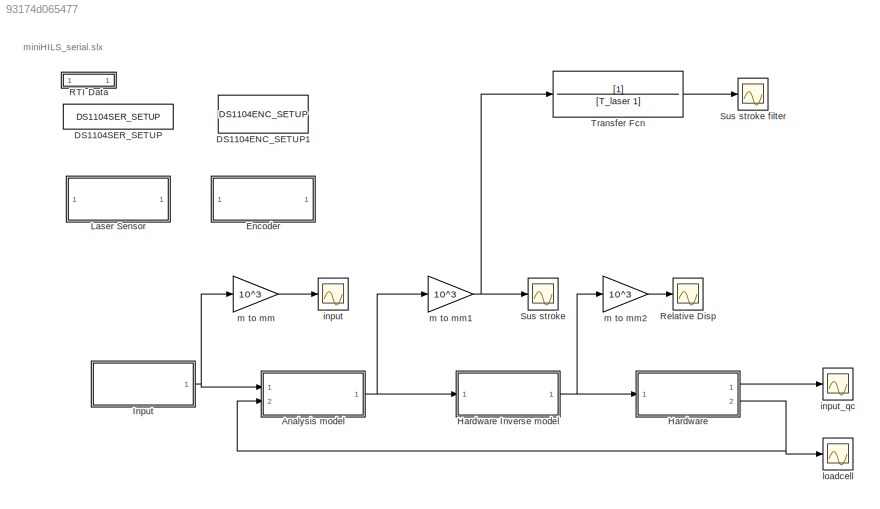
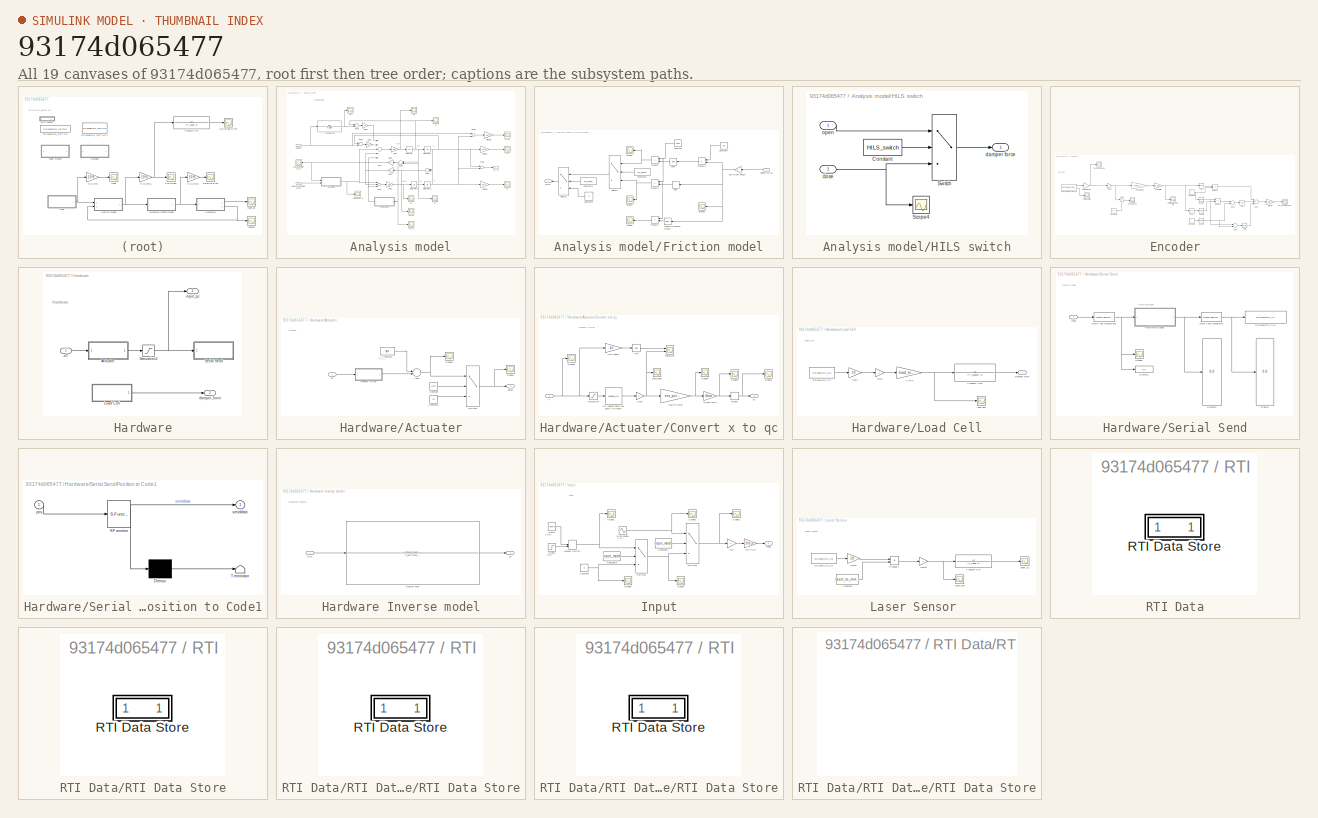
[diagram: thumbnail index - all 19 canvases of the model, root first then tree order]
MODEL slx_93174d065477
KIND model
CONFIG AbsTol = auto
CONFIG EnableMultiTasking = off
CONFIG FixedStep = 0.002
CONFIG InitFcn = start=0;\ninput_mode=1;\nHILS_switch=1;\n\n%sine wave\nHz=1;\nx=1;\nqc=26500;\n\n%sistem configuration\n%Analysis model\nm2=6.4;\nm1=1.2;\nk2=405;\nk1=2200;\nc2=15;\nc1=150;\n%Hardware model\nm2_h=6.4;\nm1_h=1.2;\nk2_h=405;\nk1_h=2200;\nc2_h=15;\nc1_h=0;\n\n%parameter\nr=0.045;\nl=0.090;\nGear=113;\nenc_pulse=500;\nlaser_to_mm=28;\nlaser_to_mm_30=6;\nload_to_N=20;\n\n%friction\nM_force=0;\nFmax=0.2;\nCf=0.001;\n\n%lowpass filter\nCutoff...<+143ch>
CONFIG MaxStep = auto
CONFIG MinStep = auto
CONFIG PostLoadFcn = , if any(exist('dsrtsu_mdlpostloadfcn', 'file') == [2, 3, 6]), try dsrtsu_mdlpostloadfcn('Execute', bdroot); catch fprintf('Error in PostLoadFcn (dsrtsu_mdlpostloadfcn) for model "%s":\n %s\n', bdroot, lasterr); end, end, \n
CONFIG RelTol = 1e-3
CONFIG SampleTimeConstraint = Unconstrained
CONFIG Solver = ode4
CONFIG SolverName = ode4
CONFIG StartTime = 0.0
CONFIG StopTime = Inf
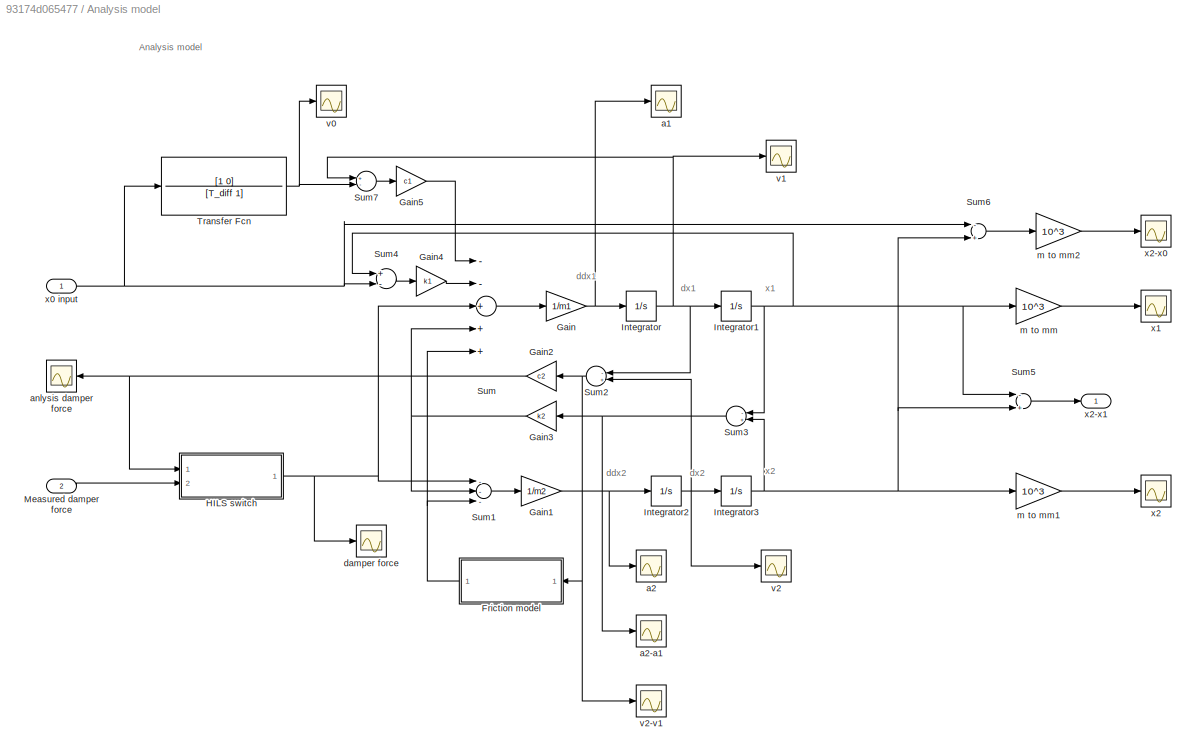
BLOCK [SubSystem] Analysis model
  Ports = [2, 1]
  RequestExecContextInheritance = off
BLOCK [SubSystem] Analysis model/Friction model
  Ports = [1, 1]
  RequestExecContextInheritance = off
BLOCK [Constant] Analysis model/Friction model/Constant
  Value = Fmax
BLOCK [Constant] Analysis model/Friction model/Constant1
  Value = M_force
BLOCK [Constant] Analysis model/Friction model/Constant2
  Value = 0
BLOCK [Constant] Analysis model/Friction model/Constant3
  Value = M_force
BLOCK [Constant] Analysis model/Friction model/Constant4
  Value = 1/Cf
BLOCK [Reference] Analysis model/Friction model/Coulomb & Viscous Friction  REF=simulink/Discontinuities/Coulomb &
Viscous Friction
  Ports = [1, 1]
  SourceBlock = simulink/Discontinuities/Coulomb &\nViscous Friction
  SourceProductBaseCode = SL
  SourceProductName = Simulink
  SourceType = Coulombic and Viscous Friction
BLOCK [Outport] Analysis model/Friction model/Force
  IconDisplay = Port number
BLOCK [Product] Analysis model/Friction model/Product
  InputSameDT = off
  OutDataTypeStr = Inherit: Inherit via internal rule
  Ports = [2, 1]
  RndMeth = Floor
  SaturateOnIntegerOverflow = off
BLOCK [Product] Analysis model/Friction model/Product1
  InputSameDT = off
  OutDataTypeStr = Inherit: Inherit via internal rule
  Ports = [2, 1]
  RndMeth = Floor
  SaturateOnIntegerOverflow = off
BLOCK [Product] Analysis model/Friction model/Product2
  InputSameDT = off
  OutDataTypeStr = Inherit: Inherit via internal rule
  Ports = [2, 1]
  RndMeth = Floor
  SaturateOnIntegerOverflow = off
BLOCK [Product] Analysis model/Friction model/Product3
  InputSameDT = off
  OutDataTypeStr = Inherit: Inherit via internal rule
  Ports = [2, 1]
  RndMeth = Floor
  SaturateOnIntegerOverflow = off
BLOCK [Scope] Analysis model/Friction model/Scope
  Floating = off
  NumInputPorts = 1
  Ports = [1]
  ScopeSpecificationString = Simulink.scopes.TimeScopeBlockCfg('CurrentConfiguration', extmgr.ConfigurationSet(extmgr.Configuration('Core','General UI',true),extmgr.Configuration('Core','Source UI',true),extmgr.Configuration('Sources','WiredSimulink',true,'DataLoggingVariableName','ScopeData5'),extmgr.Configuration('Visuals','Time Domain',true,'SerializedDisplays',{struct('MinYLimReal','-0.26264','MaxYLimReal','0.26242','YLab...<+1421ch>
BLOCK [Scope] Analysis model/Friction model/Scope1
  Floating = off
  NumInputPorts = 1
  Ports = [1]
  ScopeSpecificationString = Simulink.scopes.TimeScopeBlockCfg('CurrentConfiguration', extmgr.ConfigurationSet(extmgr.Configuration('Core','General UI',true),extmgr.Configuration('Core','Source UI',true),extmgr.Configuration('Sources','WiredSimulink',true,'DataLoggingVariableName','ScopeData6'),extmgr.Configuration('Visuals','Time Domain',true,'SerializedDisplays',{struct('MinYLimReal','-0.22386','MaxYLimReal','0.22259','YLab...<+1440ch>
BLOCK [Scope] Analysis model/Friction model/Scope2
  Floating = off
  NumInputPorts = 1
  Ports = [1]
  ScopeSpecificationString = Simulink.scopes.TimeScopeBlockCfg('CurrentConfiguration', extmgr.ConfigurationSet(extmgr.Configuration('Core','General UI',true),extmgr.Configuration('Core','Source UI',true),extmgr.Configuration('Sources','WiredSimulink',true,'DataLoggingVariableName','ScopeData7'),extmgr.Configuration('Visuals','Time Domain',true,'SerializedDisplays',{struct('MinYLimReal','-0.25','MaxYLimReal','0.25','YLabelReal...<+1349ch>
BLOCK [Scope] Analysis model/Friction model/Scope3
  Floating = off
  NumInputPorts = 1
  Ports = [1]
  ScopeSpecificationString = Simulink.scopes.TimeScopeBlockCfg('CurrentConfiguration', extmgr.ConfigurationSet(extmgr.Configuration('Core','General UI',true),extmgr.Configuration('Core','Source UI',true),extmgr.Configuration('Sources','WiredSimulink',true,'DataLoggingVariableName','ScopeData1'),extmgr.Configuration('Visuals','Time Domain',true,'SerializedDisplays',{struct('MinYLimReal','-0.03161','MaxYLimReal','0.03106','YLab...<+1451ch>
BLOCK [Signum] Analysis model/Friction model/Sign
BLOCK [Gain] Analysis model/Friction model/Sus-stroke velocity
  OutDataTypeStr = Inherit: Inherit via internal rule
  ParamDataTypeStr = Inherit: Inherit via internal rule
  SaturateOnIntegerOverflow = off
BLOCK [Switch] Analysis model/Friction model/Switch1
  Criteria = u2 > Threshold
  InputSameDT = off
  SaturateOnIntegerOverflow = off
BLOCK [Switch] Analysis model/Friction model/Switch2
  Criteria = u2 > Threshold
  InputSameDT = off
  SaturateOnIntegerOverflow = off
  Threshold = 1
BLOCK [Trigonometry] Analysis model/Friction model/Tanh
  Operator = tanh
  Ports = [1, 1]
BLOCK [Inport] Analysis model/Friction model/Velocity(v2-v1)
  IconDisplay = Port number
BLOCK [Gain] Analysis model/Gain
  Gain = 1/m1
  OutDataTypeStr = Inherit: Inherit via internal rule
  ParamDataTypeStr = Inherit: Inherit via internal rule
  SaturateOnIntegerOverflow = off
BLOCK [Gain] Analysis model/Gain1
  Gain = 1/m2
  OutDataTypeStr = Inherit: Inherit via internal rule
  ParamDataTypeStr = Inherit: Inherit via internal rule
  SaturateOnIntegerOverflow = off
BLOCK [Gain] Analysis model/Gain2
  Gain = c2
  OutDataTypeStr = Inherit: Inherit via internal rule
  ParamDataTypeStr = Inherit: Inherit via internal rule
  SaturateOnIntegerOverflow = off
BLOCK [Gain] Analysis model/Gain3
  Gain = k2
  OutDataTypeStr = Inherit: Inherit via internal rule
  ParamDataTypeStr = Inherit: Inherit via internal rule
  SaturateOnIntegerOverflow = off
BLOCK [Gain] Analysis model/Gain4
  Gain = k1
  OutDataTypeStr = Inherit: Inherit via internal rule
  ParamDataTypeStr = Inherit: Inherit via internal rule
  SaturateOnIntegerOverflow = off
BLOCK [Gain] Analysis model/Gain5
  Gain = c1
  OutDataTypeStr = Inherit: Inherit via internal rule
  ParamDataTypeStr = Inherit: Inherit via internal rule
  SaturateOnIntegerOverflow = off
BLOCK [SubSystem] Analysis model/HILS switch
  Ports = [2, 1]
  RequestExecContextInheritance = off
BLOCK [Constant] Analysis model/HILS switch/Constant
  Value = HILS_switch
BLOCK [Scope] Analysis model/HILS switch/Scope4
  Floating = off
  NumInputPorts = 1
  Ports = [1]
  ScopeSpecificationString = Simulink.scopes.TimeScopeBlockCfg('CurrentConfiguration', extmgr.ConfigurationSet(extmgr.Configuration('Core','General UI',true),extmgr.Configuration('Core','Source UI',true),extmgr.Configuration('Sources','WiredSimulink',true,'DataLoggingVariableName','ScopeData2'),extmgr.Configuration('Visuals','Time Domain',true,'SerializedDisplays',{struct('MinYLimReal','-1.00000','MaxYLimReal','1.00000','YLab...<+1396ch>
BLOCK [Switch] Analysis model/HILS switch/Switch
  Criteria = u2 > Threshold
  InputSameDT = off
  SaturateOnIntegerOverflow = off
BLOCK [Inport] Analysis model/HILS switch/close
  IconDisplay = Port number
  Port = 2
BLOCK [Outport] Analysis model/HILS switch/damper force
  IconDisplay = Port number
BLOCK [Inport] Analysis model/HILS switch/open
  IconDisplay = Port number
BLOCK [Integrator] Analysis model/Integrator
  Ports = [1, 1]
BLOCK [Integrator] Analysis model/Integrator1
  Ports = [1, 1]
BLOCK [Integrator] Analysis model/Integrator2
  Ports = [1, 1]
BLOCK [Integrator] Analysis model/Integrator3
  Ports = [1, 1]
BLOCK [Inport] Analysis model/Measured damper force
  IconDisplay = Port number
  Port = 2
BLOCK [Sum] Analysis model/Sum
  InputSameDT = off
  Inputs = --+++
  OutDataTypeStr = Inherit: Inherit via internal rule
  Ports = [5, 1]
  SaturateOnIntegerOverflow = off
BLOCK [Sum] Analysis model/Sum1
  InputSameDT = off
  Inputs = ---
  OutDataTypeStr = Inherit: Inherit via internal rule
  Ports = [3, 1]
  SaturateOnIntegerOverflow = off
BLOCK [Sum] Analysis model/Sum2
  InputSameDT = off
  Inputs = -+
  OutDataTypeStr = Inherit: Inherit via internal rule
  Ports = [2, 1]
  SaturateOnIntegerOverflow = off
BLOCK [Sum] Analysis model/Sum3
  InputSameDT = off
  Inputs = -+
  OutDataTypeStr = Inherit: Inherit via internal rule
  Ports = [2, 1]
  SaturateOnIntegerOverflow = off
BLOCK [Sum] Analysis model/Sum4
  InputSameDT = off
  Inputs = +-
  OutDataTypeStr = Inherit: Inherit via internal rule
  Ports = [2, 1]
  SaturateOnIntegerOverflow = off
BLOCK [Sum] Analysis model/Sum5
  InputSameDT = off
  Inputs = -+
  OutDataTypeStr = Inherit: Inherit via internal rule
  Ports = [2, 1]
  SaturateOnIntegerOverflow = off
BLOCK [Sum] Analysis model/Sum6
  InputSameDT = off
  Inputs = -+
  OutDataTypeStr = Inherit: Inherit via internal rule
  Ports = [2, 1]
  SaturateOnIntegerOverflow = off
BLOCK [Sum] Analysis model/Sum7
  InputSameDT = off
  Inputs = +-
  OutDataTypeStr = Inherit: Inherit via internal rule
  Ports = [2, 1]
  SaturateOnIntegerOverflow = off
BLOCK [TransferFcn] Analysis model/Transfer Fcn
  Denominator = [T_diff 1]
  Numerator = [1 0]
BLOCK [Scope] Analysis model/a1
  Floating = off
  NumInputPorts = 1
  Ports = [1]
  ScopeSpecificationString = Simulink.scopes.TimeScopeBlockCfg('CurrentConfiguration', extmgr.ConfigurationSet(extmgr.Configuration('Core','General UI',true),extmgr.Configuration('Core','Source UI',true),extmgr.Configuration('Sources','WiredSimulink',true,'DataLoggingVariableName','ScopeData2'),extmgr.Configuration('Visuals','Time Domain',true,'SerializedDisplays',{struct('MinYLimReal','-0.18629','MaxYLimReal','0.24643','YLab...<+1417ch>
BLOCK [Scope] Analysis model/a2
  Floating = off
  NumInputPorts = 1
  Ports = [1]
  ScopeSpecificationString = Simulink.scopes.TimeScopeBlockCfg('CurrentConfiguration', extmgr.ConfigurationSet(extmgr.Configuration('Core','General UI',true),extmgr.Configuration('Core','Source UI',true),extmgr.Configuration('Sources','WiredSimulink',true,'DataLoggingVariableName','ScopeData4'),extmgr.Configuration('Visuals','Time Domain',true,'SerializedDisplays',{struct('MinYLimReal','-0.17803','MaxYLimReal','0.17682','YLab...<+1389ch>
BLOCK [Scope] Analysis model/a2-a1
  Floating = off
  NumInputPorts = 1
  Ports = [1]
  ScopeSpecificationString = Simulink.scopes.TimeScopeBlockCfg('CurrentConfiguration', extmgr.ConfigurationSet(extmgr.Configuration('Core','General UI',true),extmgr.Configuration('Core','Source UI',true),extmgr.Configuration('Sources','WiredSimulink',true,'DataLoggingVariableName','ScopeData2'),extmgr.Configuration('Visuals','Time Domain',true,'SerializedDisplays',{struct('MinYLimReal','-0.00272','MaxYLimReal','0.00274','YLab...<+1417ch>
BLOCK [Scope] Analysis model/anlysis damper force
  Floating = off
  NumInputPorts = 1
  Ports = [1]
  ScopeSpecificationString = Simulink.scopes.TimeScopeBlockCfg('CurrentConfiguration', extmgr.ConfigurationSet(extmgr.Configuration('Core','General UI',true),extmgr.Configuration('Core','Source UI',true),extmgr.Configuration('Sources','WiredSimulink',true,'DataLoggingVariableName','ScopeData6'),extmgr.Configuration('Visuals','Time Domain',true,'SerializedDisplays',{struct('MinYLimReal','-0.26291','MaxYLimReal','0.26723','YLab...<+1418ch>
BLOCK [Scope] Analysis model/damper force
  Floating = off
  NumInputPorts = 1
  Ports = [1]
  ScopeSpecificationString = Simulink.scopes.TimeScopeBlockCfg('CurrentConfiguration', extmgr.ConfigurationSet(extmgr.Configuration('Core','General UI',true),extmgr.Configuration('Core','Source UI',true),extmgr.Configuration('Sources','WiredSimulink',true,'DataLoggingVariableName','ScopeData2'),extmgr.Configuration('Visuals','Time Domain',true,'SerializedDisplays',{struct('MinYLimReal','-1.00000','MaxYLimReal','1.00000','YLab...<+1390ch>
BLOCK [Gain] Analysis model/m to mm
  Gain = 10^3
  OutDataTypeStr = Inherit: Inherit via internal rule
  ParamDataTypeStr = Inherit: Inherit via internal rule
  SaturateOnIntegerOverflow = off
BLOCK [Gain] Analysis model/m to mm1
  Gain = 10^3
  OutDataTypeStr = Inherit: Inherit via internal rule
  ParamDataTypeStr = Inherit: Inherit via internal rule
  SaturateOnIntegerOverflow = off
BLOCK [Gain] Analysis model/m to mm2
  Gain = 10^3
  OutDataTypeStr = Inherit: Inherit via internal rule
  ParamDataTypeStr = Inherit: Inherit via internal rule
  SaturateOnIntegerOverflow = off
BLOCK [Scope] Analysis model/v0
  Floating = off
  NumInputPorts = 1
  Ports = [1]
  ScopeSpecificationString = Simulink.scopes.TimeScopeBlockCfg('CurrentConfiguration', extmgr.ConfigurationSet(extmgr.Configuration('Core','General UI',true),extmgr.Configuration('Core','Source UI',true),extmgr.Configuration('Sources','WiredSimulink',true,'DataLoggingVariableName','ScopeData1'),extmgr.Configuration('Visuals','Time Domain',true,'SerializedDisplays',{struct('MinYLimReal','-0.00784','MaxYLimReal','0.00784','YLab...<+1425ch>
BLOCK [Scope] Analysis model/v1
  Floating = off
  NumInputPorts = 1
  Ports = [1]
  ScopeSpecificationString = Simulink.scopes.TimeScopeBlockCfg('CurrentConfiguration', extmgr.ConfigurationSet(extmgr.Configuration('Core','General UI',true),extmgr.Configuration('Core','Source UI',true),extmgr.Configuration('Sources','WiredSimulink',true,'DataLoggingVariableName','ScopeData1'),extmgr.Configuration('Visuals','Time Domain',true,'SerializedDisplays',{struct('MinYLimReal','-0.01113','MaxYLimReal','0.01107','YLab...<+1423ch>
BLOCK [Scope] Analysis model/v2
  Floating = off
  NumInputPorts = 1
  Ports = [1]
  ScopeSpecificationString = Simulink.scopes.TimeScopeBlockCfg('CurrentConfiguration', extmgr.ConfigurationSet(extmgr.Configuration('Core','General UI',true),extmgr.Configuration('Core','Source UI',true),extmgr.Configuration('Sources','WiredSimulink',true,'DataLoggingVariableName','ScopeData3'),extmgr.Configuration('Visuals','Time Domain',true,'SerializedDisplays',{struct('MinYLimReal','-0.02751','MaxYLimReal','0.02751','YLab...<+1423ch>
BLOCK [Scope] Analysis model/v2-v1
  Floating = off
  NumInputPorts = 1
  Ports = [1]
  ScopeSpecificationString = Simulink.scopes.TimeScopeBlockCfg('CurrentConfiguration', extmgr.ConfigurationSet(extmgr.Configuration('Core','General UI',true),extmgr.Configuration('Core','Source UI',true),extmgr.Configuration('Sources','WiredSimulink',true,'DataLoggingVariableName','ScopeData3'),extmgr.Configuration('Visuals','Time Domain',true,'SerializedDisplays',{struct('MinYLimReal','-0.01753','MaxYLimReal','0.01782','YLab...<+1417ch>
BLOCK [Inport] Analysis model/x0 input
  IconDisplay = Port number
BLOCK [Scope] Analysis model/x1
  Floating = off
  NumInputPorts = 1
  Ports = [1]
  ScopeSpecificationString = Simulink.scopes.TimeScopeBlockCfg('CurrentConfiguration', extmgr.ConfigurationSet(extmgr.Configuration('Core','General UI',true),extmgr.Configuration('Core','Source UI',true),extmgr.Configuration('Sources','WiredSimulink',true,'DataLoggingVariableName','ScopeData11'),extmgr.Configuration('Visuals','Time Domain',true,'SerializedDisplays',{struct('MinYLimReal','-1.75698','MaxYLimReal','1.75412','YLa...<+1421ch>
BLOCK [Scope] Analysis model/x2
  Floating = off
  NumInputPorts = 1
  Ports = [1]
  ScopeSpecificationString = Simulink.scopes.TimeScopeBlockCfg('CurrentConfiguration', extmgr.ConfigurationSet(extmgr.Configuration('Core','General UI',true),extmgr.Configuration('Core','Source UI',true),extmgr.Configuration('Sources','WiredSimulink',true,'DataLoggingVariableName','ScopeData10'),extmgr.Configuration('Visuals','Time Domain',true,'SerializedDisplays',{struct('MinYLimReal','-4.27371','MaxYLimReal','4.29284','YLa...<+1422ch>
BLOCK [Scope] Analysis model/x2-x0
  Floating = off
  NumInputPorts = 1
  Ports = [1]
  ScopeSpecificationString = Simulink.scopes.TimeScopeBlockCfg('CurrentConfiguration', extmgr.ConfigurationSet(extmgr.Configuration('Core','General UI',true),extmgr.Configuration('Core','Source UI',true),extmgr.Configuration('Sources','WiredSimulink',true,'DataLoggingVariableName','ScopeData6'),extmgr.Configuration('Visuals','Time Domain',true,'SerializedDisplays',{struct('MinYLimReal','-1.2183','MaxYLimReal','0.96466','YLabe...<+1436ch>
BLOCK [Outport] Analysis model/x2-x1
  IconDisplay = Port number
BLOCK [Reference] DS1104ENC_SETUP1  REF=rtilib1104/DS1104 MASTER PPC/DS1104ENC_SETUP
  Ports = []
  SourceBlock = rtilib1104/DS1104 MASTER PPC/DS1104ENC_SETUP
  SourceProductName = dSPACE RTI1104
  SourceType = RTI
BLOCK [Reference] DS1104SER_SETUP  REF=rti1104serlib/DS1104SER_SETUP
  Ports = []
  SourceBlock = rti1104serlib/DS1104SER_SETUP
  SourceType = RTI
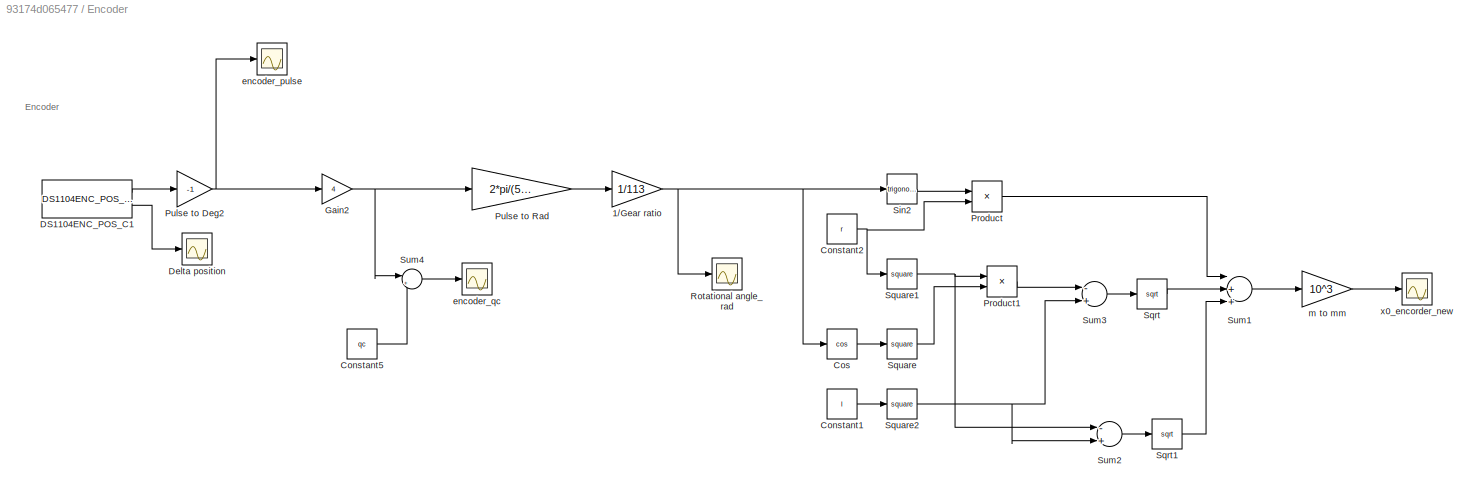
BLOCK [SubSystem] Encoder
  Ports = []
  RequestExecContextInheritance = off
BLOCK [Gain] Encoder/1//Gear ratio
  Gain = 1/113
  OutDataTypeStr = Inherit: Inherit via internal rule
  ParamDataTypeStr = Inherit: Inherit via internal rule
  SaturateOnIntegerOverflow = off
BLOCK [Constant] Encoder/Constant1
  Value = l
BLOCK [Constant] Encoder/Constant2
  Value = r
BLOCK [Constant] Encoder/Constant5
  Value = qc
BLOCK [Trigonometry] Encoder/Cos
  Operator = cos
  Ports = [1, 1]
BLOCK [Reference] Encoder/DS1104ENC_POS_C1  REF=rtilib1104/DS1104 MASTER PPC/DS1104ENC_POS_C1
  Ports = [0, 2]
  SourceBlock = rtilib1104/DS1104 MASTER PPC/DS1104ENC_POS_C1
  SourceProductName = dSPACE RTI1104
  SourceType = RTI
BLOCK [Scope] Encoder/Delta position
  Floating = off
  NumInputPorts = 1
  Ports = [1]
  ScopeSpecificationString = Simulink.scopes.TimeScopeBlockCfg('CurrentConfiguration', extmgr.ConfigurationSet(extmgr.Configuration('Core','General UI',true),extmgr.Configuration('Core','Source UI',true),extmgr.Configuration('Sources','WiredSimulink',true,'DataLoggingVariableName','ScopeData3'),extmgr.Configuration('Visuals','Time Domain',true,'SerializedDisplays',{struct('MinYLimReal','-1.00000','MaxYLimReal','1.00000','YLab...<+1377ch>
BLOCK [Gain] Encoder/Gain2
  Gain = 4
  OutDataTypeStr = Inherit: Inherit via internal rule
  ParamDataTypeStr = Inherit: Inherit via internal rule
  SaturateOnIntegerOverflow = off
BLOCK [Product] Encoder/Product
  InputSameDT = off
  OutDataTypeStr = Inherit: Inherit via internal rule
  Ports = [2, 1]
  RndMeth = Floor
  SaturateOnIntegerOverflow = off
BLOCK [Product] Encoder/Product1
  InputSameDT = off
  OutDataTypeStr = Inherit: Inherit via internal rule
  Ports = [2, 1]
  RndMeth = Floor
  SaturateOnIntegerOverflow = off
BLOCK [Gain] Encoder/Pulse to Deg2
  Gain = -1
  OutDataTypeStr = Inherit: Inherit via internal rule
  ParamDataTypeStr = Inherit: Inherit via internal rule
  SaturateOnIntegerOverflow = off
BLOCK [Gain] Encoder/Pulse to Rad
  Gain = 2*pi/(500*4)
  OutDataTypeStr = Inherit: Inherit via internal rule
  ParamDataTypeStr = Inherit: Inherit via internal rule
  SaturateOnIntegerOverflow = off
BLOCK [Scope] Encoder/Rotational angle_rad
  Floating = off
  NumInputPorts = 1
  Ports = [1]
  ScopeSpecificationString = Simulink.scopes.TimeScopeBlockCfg('CurrentConfiguration', extmgr.ConfigurationSet(extmgr.Configuration('Core','General UI',true),extmgr.Configuration('Core','Source UI',true),extmgr.Configuration('Sources','WiredSimulink',true,'DataLoggingVariableName','ScopeData5'),extmgr.Configuration('Visuals','Time Domain',true,'SerializedDisplays',{struct('MinYLimReal','-1.00000','MaxYLimReal','1.00000','YLab...<+1359ch>
BLOCK [Trigonometry] Encoder/Sin2
  Ports = [1, 1]
BLOCK [Sqrt] Encoder/Sqrt
BLOCK [Sqrt] Encoder/Sqrt1
BLOCK [Math] Encoder/Square
  Operator = square
  Ports = [1, 1]
BLOCK [Math] Encoder/Square1
  Operator = square
  Ports = [1, 1]
BLOCK [Math] Encoder/Square2
  Operator = square
  Ports = [1, 1]
BLOCK [Sum] Encoder/Sum1
  InputSameDT = off
  Inputs = |++-
  OutDataTypeStr = Inherit: Inherit via internal rule
  Ports = [3, 1]
  SaturateOnIntegerOverflow = off
BLOCK [Sum] Encoder/Sum2
  InputSameDT = off
  Inputs = -+
  OutDataTypeStr = Inherit: Inherit via internal rule
  Ports = [2, 1]
  SaturateOnIntegerOverflow = off
BLOCK [Sum] Encoder/Sum3
  InputSameDT = off
  Inputs = -+
  OutDataTypeStr = Inherit: Inherit via internal rule
  Ports = [2, 1]
  SaturateOnIntegerOverflow = off
BLOCK [Sum] Encoder/Sum4
  IconShape = round
  InputSameDT = off
  Inputs = |++
  OutDataTypeStr = Inherit: Inherit via internal rule
  Ports = [2, 1]
  SaturateOnIntegerOverflow = off
BLOCK [Scope] Encoder/encoder_pulse
  Floating = off
  NumInputPorts = 1
  Ports = [1]
  ScopeSpecificationString = Simulink.scopes.TimeScopeBlockCfg('CurrentConfiguration', extmgr.ConfigurationSet(extmgr.Configuration('Core','General UI',true),extmgr.Configuration('Core','Source UI',true),extmgr.Configuration('Sources','WiredSimulink',true,'DataLoggingVariableName','ScopeData4'),extmgr.Configuration('Visuals','Time Domain',true,'SerializedDisplays',{struct('MinYLimReal','-0.39775','MaxYLimReal','3.57978','YLab...<+1419ch>
BLOCK [Scope] Encoder/encoder_qc
  Floating = off
  NumInputPorts = 1
  Ports = [1]
  ScopeSpecificationString = Simulink.scopes.TimeScopeBlockCfg('CurrentConfiguration', extmgr.ConfigurationSet(extmgr.Configuration('Core','General UI',true),extmgr.Configuration('Core','Source UI',true),extmgr.Configuration('Sources','WiredSimulink',true,'DataLoggingVariableName','ScopeData1'),extmgr.Configuration('Visuals','Time Domain',true,'SerializedDisplays',{struct('MinYLimReal','-2500.11228','MaxYLimReal','22501.01049...<+1445ch>
BLOCK [Gain] Encoder/m to mm
  Gain = 10^3
  OutDataTypeStr = Inherit: Inherit via internal rule
  ParamDataTypeStr = Inherit: Inherit via internal rule
  SaturateOnIntegerOverflow = off
BLOCK [Scope] Encoder/x0_encorder_new
  Floating = off
  NumInputPorts = 1
  Ports = [1]
  ScopeSpecificationString = Simulink.scopes.TimeScopeBlockCfg('CurrentConfiguration', extmgr.ConfigurationSet(extmgr.Configuration('Core','General UI',true),extmgr.Configuration('Core','Source UI',true),extmgr.Configuration('Sources','WiredSimulink',true,'DataLoggingVariableName','ScopeData2'),extmgr.Configuration('Visuals','Time Domain',true,'SerializedDisplays',{struct('MinYLimReal','9.0312','MaxYLimReal','17.97121','YLabe...<+1391ch>
BLOCK [SubSystem] Hardware
  Ports = [1, 2]
  RequestExecContextInheritance = off
BLOCK [SubSystem] Hardware Inverse model
  Ports = [1, 1]
  RequestExecContextInheritance = off
BLOCK [TransferFcn] Hardware Inverse model/Transfer Fcn3
  Denominator = [T_diff^3*k1_h 3*T_diff^2*k1_h 3*T_diff*k1_h k1_h]
  Numerator = [-m1_h -c2_h -(k1_h+k2_h)]
BLOCK [Outport] Hardware Inverse model/x0'
  IconDisplay = Port number
BLOCK [Inport] Hardware Inverse model/x2-x1
  IconDisplay = Port number
BLOCK [SubSystem] Hardware/Actuater
  Ports = [1, 1]
  RequestExecContextInheritance = off
BLOCK [Sum] Hardware/Actuater/Add2
  InputSameDT = off
  OutDataTypeStr = Inherit: Inherit via internal rule
  Ports = [2, 1]
  SaturateOnIntegerOverflow = off
BLOCK [Constant] Hardware/Actuater/Constant
  Value = start
BLOCK [Constant] Hardware/Actuater/Constant3
  Value = qc
BLOCK [Constant] Hardware/Actuater/Constant4
  OutDataTypeStr = int16
  SampleTime = 1
  Value = qc
BLOCK [SubSystem] Hardware/Actuater/Convert x to qc
  Ports = [1, 1]
  RequestExecContextInheritance = off
BLOCK [Gain] Hardware/Actuater/Convert x to qc/1//Gear ratio
  Gain = Gear
  OutDataTypeStr = Inherit: Inherit via internal rule
  ParamDataTypeStr = Inherit: Inherit via internal rule
  SaturateOnIntegerOverflow = off
BLOCK [Trigonometry] Hardware/Actuater/Convert x to qc/Asin
  Operator = asin
  Ports = [1, 1]
BLOCK [Gain] Hardware/Actuater/Convert x to qc/Gain
  OutDataTypeStr = Inherit: Inherit via internal rule
  ParamDataTypeStr = Inherit: Inherit via internal rule
  SaturateOnIntegerOverflow = off
BLOCK [Gain] Hardware/Actuater/Convert x to qc/Link length
  Gain = 1/r
  OutDataTypeStr = Inherit: Inherit via internal rule
  ParamDataTypeStr = Inherit: Inherit via internal rule
  SaturateOnIntegerOverflow = off
BLOCK [Gain] Hardware/Actuater/Convert x to qc/Rad to Pulse
  Gain = enc_pulse*4/(2*pi)
  OutDataTypeStr = Inherit: Inherit via internal rule
  ParamDataTypeStr = Inherit: Inherit via internal rule
  SaturateOnIntegerOverflow = off
BLOCK [Rounding] Hardware/Actuater/Convert x to qc/Round
  Operator = round
BLOCK [Saturate] Hardware/Actuater/Convert x to qc/Saturation
  InputPortMap = u0
  LowerLimit = -0.25
  Ports = [1, 1]
  UpperLimit = 0.38
BLOCK [Scope] Hardware/Actuater/Convert x to qc/Scope1
  Floating = off
  NumInputPorts = 1
  Ports = [1]
  ScopeSpecificationString = Simulink.scopes.TimeScopeBlockCfg('CurrentConfiguration', extmgr.ConfigurationSet(extmgr.Configuration('Core','General UI',true),extmgr.Configuration('Core','Source UI',true),extmgr.Configuration('Sources','WiredSimulink',true,'DataLoggingVariableName','ScopeData2'),extmgr.Configuration('Visuals','Time Domain',true,'SerializedDisplays',{struct('MinYLimReal','-1150.37875','MaxYLimReal','1122.43673'...<+1418ch>
BLOCK [Scope] Hardware/Actuater/Convert x to qc/Scope2
  Floating = off
  NumInputPorts = 1
  Ports = [1]
  ScopeSpecificationString = Simulink.scopes.TimeScopeBlockCfg('CurrentConfiguration', extmgr.ConfigurationSet(extmgr.Configuration('Core','General UI',true),extmgr.Configuration('Core','Source UI',true),extmgr.Configuration('Sources','WiredSimulink',true,'DataLoggingVariableName','ScopeData3'),extmgr.Configuration('Visuals','Time Domain',true,'SerializedDisplays',{struct('MinYLimReal','-1150.25','MaxYLimReal','1122.25','YLab...<+1393ch>
BLOCK [Scope] Hardware/Actuater/Convert x to qc/Scope3
  Floating = off
  NumInputPorts = 1
  Ports = [1]
  ScopeSpecificationString = Simulink.scopes.TimeScopeBlockCfg('CurrentConfiguration', extmgr.ConfigurationSet(extmgr.Configuration('Core','General UI',true),extmgr.Configuration('Core','Source UI',true),extmgr.Configuration('Sources','WiredSimulink',true,'DataLoggingVariableName','ScopeData4'),extmgr.Configuration('Visuals','Time Domain',true,'SerializedDisplays',{struct('MinYLimReal','-0.0143','MaxYLimReal','0.01412','YLabe...<+1381ch>
BLOCK [Scope] Hardware/Actuater/Convert x to qc/Scope6
  Floating = off
  NumInputPorts = 1
  Ports = [1]
  ScopeSpecificationString = Simulink.scopes.TimeScopeBlockCfg('CurrentConfiguration', extmgr.ConfigurationSet(extmgr.Configuration('Core','General UI',true),extmgr.Configuration('Core','Source UI',true),extmgr.Configuration('Sources','WiredSimulink',true,'DataLoggingVariableName','ScopeData7'),extmgr.Configuration('Visuals','Time Domain',true,'SerializedDisplays',{struct('MinYLimReal','-10.18034','MaxYLimReal','9.93307','YLa...<+1430ch>
BLOCK [Lookup_n-D] Hardware/Actuater/Convert x to qc/n-D Lookup Table (90 data) x to theta
  BreakpointsForDimension1 = [-0.0255748\n-0.025224748\n-0.024865444\n-0.024496806\n-0.024118754\n-0.023731207\n-0.023334088\n-0.022927321\n-0.022510829\n-0.022084541\n-0.021648387\n-0.021202299\n-0.020746214\n-0.02028007\n-0.01980381\n-0.019317383\n-0.018820738\n-0.018313834\n-0.01779663\n-0.017269095\n-0.016731201\n-0.016182927\n-0.015624258\n-0.015055189\n-0.014475717\n-0.013885852\n-0.013285608\n-0.012675011\n-0.012054093\n-0.011422895\n-0.010781471\n-...<+720ch>
  BreakpointsForDimension3 = [5, 7]
  ExtrapMethod = Cubic spline
  InternalRulePriority = Speed
  InterpMethod = Cubic spline
  NumberOfTableDimensions = 1
  Ports = [1, 1]
  RndMeth = Simplest
  Table = [-0.785398163\n-0.767944871\n-0.750491578\n-0.733038286\n-0.715584993\n-0.698131701\n-0.680678408\n-0.663225116\n-0.645771823\n-0.628318531\n-0.610865238\n-0.593411946\n-0.575958653\n-0.558505361\n-0.541052068\n-0.523598776\n-0.506145483\n-0.488692191\n-0.471238898\n-0.453785606\n-0.436332313\n-0.41887902\n-0.401425728\n-0.383972435\n-0.366519143\n-0.34906585\n-0.331612558\n-0.314159265\n-0.296705973\n-0.27925268\n-0.261799388...<+717ch>
BLOCK [Outport] Hardware/Actuater/Convert x to qc/qc
  IconDisplay = Port number
BLOCK [Scope] Hardware/Actuater/Convert x to qc/theta_new
  Floating = off
  NumInputPorts = 1
  Ports = [1]
  ScopeSpecificationString = Simulink.scopes.TimeScopeBlockCfg('CurrentConfiguration', extmgr.ConfigurationSet(extmgr.Configuration('Core','General UI',true),extmgr.Configuration('Core','Source UI',true),extmgr.Configuration('Sources','WiredSimulink',true,'DataLoggingVariableName','ScopeData5'),extmgr.Configuration('Visuals','Time Domain',true,'SerializedDisplays',{struct('MinYLimReal','-0.03198','MaxYLimReal','0.03121','YLab...<+1417ch>
BLOCK [Scope] Hardware/Actuater/Convert x to qc/theta_old
  Floating = off
  NumInputPorts = 2
  Ports = [2]
  ScopeSpecificationString = Simulink.scopes.TimeScopeBlockCfg('CurrentConfiguration', extmgr.ConfigurationSet(extmgr.Configuration('Core','General UI',true),extmgr.Configuration('Core','Source UI',true),extmgr.Configuration('Sources','WiredSimulink',true,'DataLoggingVariableName','ScopeData1'),extmgr.Configuration('Visuals','Time Domain',true,'SerializedDisplays',{struct('MinYLimReal','-0.28081','MaxYLimReal','0.26601','YLab...<+1437ch>
BLOCK [Inport] Hardware/Actuater/Convert x to qc/x
  IconDisplay = Port number
BLOCK [Scope] Hardware/Actuater/Scope1
  Floating = off
  NumInputPorts = 1
  Ports = [1]
  ScopeSpecificationString = Simulink.scopes.TimeScopeBlockCfg('CurrentConfiguration', extmgr.ConfigurationSet(extmgr.Configuration('Core','General UI',true),extmgr.Configuration('Core','Source UI',true),extmgr.Configuration('Sources','WiredSimulink',true,'DataLoggingVariableName','ScopeData4'),extmgr.Configuration('Visuals','Time Domain',true,'SerializedDisplays',{struct('MinYLimReal','17000.00000','MaxYLimReal','37000.00000...<+1440ch>
BLOCK [Scope] Hardware/Actuater/Scope4
  Floating = off
  NumInputPorts = 1
  Ports = [1]
  ScopeSpecificationString = Simulink.scopes.TimeScopeBlockCfg('CurrentConfiguration', extmgr.ConfigurationSet(extmgr.Configuration('Core','General UI',true),extmgr.Configuration('Core','Source UI',true),extmgr.Configuration('Sources','WiredSimulink',true,'DataLoggingVariableName','ScopeData3'),extmgr.Configuration('Visuals','Time Domain',true,'SerializedDisplays',{struct('MinYLimReal','25849.75','MaxYLimReal','28122.25','YLa...<+1413ch>
BLOCK [Switch] Hardware/Actuater/Switch1
  Criteria = u2 > Threshold
  InputSameDT = off
  SaturateOnIntegerOverflow = off
BLOCK [Inport] Hardware/Actuater/x0'
  IconDisplay = Port number
BLOCK [Outport] Hardware/Actuater/x0'(qc)
  IconDisplay = Port number
BLOCK [SubSystem] Hardware/Load Cell
  Ports = [0, 1]
  RequestExecContextInheritance = off
BLOCK [Reference] Hardware/Load Cell/DS1104ADC_C7  REF=rtilib1104/DS1104 MASTER PPC/DS1104ADC_C5
  Ports = [0, 1]
  SourceBlock = rtilib1104/DS1104 MASTER PPC/DS1104ADC_C5
  SourceProductName = dSPACE RTI1104
  SourceType = RTI
BLOCK [Outport] Hardware/Load Cell/Damper force
  IconDisplay = Port number
BLOCK [Gain] Hardware/Load Cell/Gain
  Gain = -1
  OutDataTypeStr = Inherit: Inherit via internal rule
  ParamDataTypeStr = Inherit: Inherit via internal rule
  SaturateOnIntegerOverflow = off
BLOCK [Gain] Hardware/Load Cell/Gain 
  Gain = 10
  OutDataTypeStr = Inherit: Inherit via internal rule
  ParamDataTypeStr = Inherit: Inherit via internal rule
  SaturateOnIntegerOverflow = off
BLOCK [TransferFcn] Hardware/Load Cell/Transfer Fcn1
  Denominator = [T_loadcell 1]
BLOCK [Gain] Hardware/Load Cell/V to N
  Gain = load_to_N/10
  OutDataTypeStr = Inherit: Inherit via internal rule
  ParamDataTypeStr = Inherit: Inherit via internal rule
  SaturateOnIntegerOverflow = off
BLOCK [Scope] Hardware/Load Cell/load raw
  Floating = off
  NumInputPorts = 1
  Ports = [1]
  ScopeSpecificationString = Simulink.scopes.TimeScopeBlockCfg('CurrentConfiguration', extmgr.ConfigurationSet(extmgr.Configuration('Core','General UI',true),extmgr.Configuration('Core','Source UI',true),extmgr.Configuration('Sources','WiredSimulink',true,'DataLoggingVariableName','ScopeData1'),extmgr.Configuration('Visuals','Time Domain',true),extmgr.Configuration('Tools','Plot Navigation',true),extmgr.Configuration('Tools',...<+40ch>
BLOCK [Saturate] Hardware/Saturation2
  InputPortMap = u0
  LowerLimit = 0
  Ports = [1, 1]
  UpperLimit = 47000
BLOCK [SubSystem] Hardware/Serial Send
  Ports = [1]
  RequestExecContextInheritance = off
BLOCK [Reference] Hardware/Serial Send/DS1104SER_TX3  REF=rti1104serlib/DS1104SER_TX
  Ports = [1]
  SourceBlock = rti1104serlib/DS1104SER_TX
  SourceType = RTI
BLOCK [DataTypeConversion] Hardware/Serial Send/Data Type Conversion
  OutDataTypeStr = uint8
  RndMeth = Floor
  SaturateOnIntegerOverflow = off
BLOCK [DataTypeConversion] Hardware/Serial Send/Data Type Conversion1
  OutDataTypeStr = double
  RndMeth = Ceiling
  SaturateOnIntegerOverflow = off
BLOCK [Display] Hardware/Serial Send/Display
  Decimation = 1
  Ports = [1]
BLOCK [Display] Hardware/Serial Send/Display1
  Decimation = 1
  Format = long
  Ports = [1]
BLOCK [Display] Hardware/Serial Send/Display2
  Decimation = 1
  Format = long
  Ports = [1]
BLOCK [Inport] Hardware/Serial Send/Input
  IconDisplay = Port number
BLOCK [SubSystem] Hardware/Serial Send/Position to Code1
  ErrorFcn = Stateflow.Translate.translate
  PermitHierarchicalResolution = ExplicitOnly
  Ports = [1, 1]
  RequestExecContextInheritance = off
  SFBlockType = MATLAB Function
  TreatAsAtomicUnit = on
BLOCK [Demux] Hardware/Serial Send/Position to Code1/ Demux 
  Outputs = 1
  Ports = [1, 1]
BLOCK [S-Function] Hardware/Serial Send/Position to Code1/ SFunction 
  EnableBusSupport = on
  FunctionName = sf_sfun
  PortCounts = [1 2]
  Ports = [1, 2]
  SFcnIsStateOwnerBlock = off
  SFunctionDeploymentMode = off
  Tag = Stateflow S-Function miniHILS_serial_2019 1
BLOCK [Terminator] Hardware/Serial Send/Position to Code1/ Terminator 
BLOCK [Inport] Hardware/Serial Send/Position to Code1/pos
  IconDisplay = Port number
BLOCK [Outport] Hardware/Serial Send/Position to Code1/senddata
  IconDisplay = Port number
BLOCK [Scope] Hardware/Serial Send/Scope2
  Floating = off
  NumInputPorts = 1
  Ports = [1]
  ScopeSpecificationString = Simulink.scopes.TimeScopeBlockCfg('CurrentConfiguration', extmgr.ConfigurationSet(extmgr.Configuration('Core','General UI',true),extmgr.Configuration('Core','Source UI',true),extmgr.Configuration('Sources','WiredSimulink',true,'DataLoggingVariableName','ScopeData17'),extmgr.Configuration('Visuals','Time Domain',true,'SerializedDisplays',{struct('MinYLimReal','17000.00000','MaxYLimReal','37000.0000...<+1466ch>
BLOCK [Outport] Hardware/damper_force
  IconDisplay = Port number
  Port = 2
BLOCK [Outport] Hardware/input_pc 
  IconDisplay = Port number
BLOCK [Inport] Hardware/x0'
  IconDisplay = Port number
BLOCK [SubSystem] Input
  Ports = [0, 1]
  RequestExecContextInheritance = off
BLOCK [Constant] Input/Constant
  Value = 0
BLOCK [Constant] Input/Constant7
  Value = input_mode
BLOCK [Constant] Input/Constant8
  Value = input_mode
BLOCK [ManualSwitch] Input/Manual Switch
  CurrentSetting = 0
BLOCK [Reference] Input/Ramp  REF=simulink/Sources/Ramp
  Ports = [0, 1]
  SourceBlock = simulink/Sources/Ramp
  SourceProductBaseCode = SL
  SourceProductName = Simulink
  SourceType = Ramp
BLOCK [Scope] Input/Scope1
  Floating = off
  NumInputPorts = 1
  Ports = [1]
  ScopeSpecificationString = Simulink.scopes.TimeScopeBlockCfg('CurrentConfiguration', extmgr.ConfigurationSet(extmgr.Configuration('Core','General UI',true),extmgr.Configuration('Core','Source UI',true),extmgr.Configuration('Sources','WiredSimulink',true,'DataLoggingVariableName','ScopeData1'),extmgr.Configuration('Visuals','Time Domain',true,'SerializedDisplays',{struct('MinYLimReal','-1.25','MaxYLimReal','1.25','YLabelReal...<+1403ch>
BLOCK [Scope] Input/Scope2
  Floating = off
  NumInputPorts = 1
  Ports = [1]
  ScopeSpecificationString = Simulink.scopes.TimeScopeBlockCfg('CurrentConfiguration', extmgr.ConfigurationSet(extmgr.Configuration('Core','General UI',true),extmgr.Configuration('Core','Source UI',true),extmgr.Configuration('Sources','WiredSimulink',true,'DataLoggingVariableName','ScopeData1'),extmgr.Configuration('Visuals','Time Domain',true,'SerializedDisplays',{struct('MinYLimReal','-0.125','MaxYLimReal','1.125','YLabelRe...<+1385ch>
BLOCK [Scope] Input/Scope5
  Floating = off
  NumInputPorts = 1
  Ports = [1]
  ScopeSpecificationString = Simulink.scopes.TimeScopeBlockCfg('CurrentConfiguration', extmgr.ConfigurationSet(extmgr.Configuration('Core','General UI',true),extmgr.Configuration('Core','Source UI',true),extmgr.Configuration('Sources','WiredSimulink',true,'DataLoggingVariableName','ScopeData3'),extmgr.Configuration('Visuals','Time Domain',true,'SerializedDisplays',{struct('MinYLimReal','-0.97463','MaxYLimReal','1.19462','YLab...<+1415ch>
BLOCK [Scope] Input/Scope6
  Floating = off
  NumInputPorts = 1
  Ports = [1]
  ScopeSpecificationString = Simulink.scopes.TimeScopeBlockCfg('CurrentConfiguration', extmgr.ConfigurationSet(extmgr.Configuration('Core','General UI',true),extmgr.Configuration('Core','Source UI',true),extmgr.Configuration('Sources','WiredSimulink',true,'DataLoggingVariableName','ScopeData3'),extmgr.Configuration('Visuals','Time Domain',true,'SerializedDisplays',{struct('MinYLimReal','-1.25','MaxYLimReal','1.25','YLabelReal...<+1376ch>
BLOCK [Scope] Input/Scope7
  Floating = off
  NumInputPorts = 1
  Ports = [1]
  ScopeSpecificationString = Simulink.scopes.TimeScopeBlockCfg('CurrentConfiguration', extmgr.ConfigurationSet(extmgr.Configuration('Core','General UI',true),extmgr.Configuration('Core','Source UI',true),extmgr.Configuration('Sources','WiredSimulink',true,'DataLoggingVariableName','ScopeData4'),extmgr.Configuration('Visuals','Time Domain',true,'SerializedDisplays',{struct('MinYLimReal','-0.125','MaxYLimReal','1.125','YLabelRe...<+1409ch>
BLOCK [Sin] Input/Sine Wave3
  Frequency = 2*pi*Hz
  Ports = [0, 1]
  SampleTime = 0
BLOCK [Step] Input/Step2
  SampleTime = 0
  Time = 2
BLOCK [Switch] Input/Switch1
  Criteria = u2 > Threshold
  InputSameDT = off
  SaturateOnIntegerOverflow = off
  Threshold = -1
BLOCK [Switch] Input/Switch3
  Criteria = u2 > Threshold
  InputSameDT = off
  SaturateOnIntegerOverflow = off
BLOCK [Outport] Input/input
  IconDisplay = Port number
BLOCK [Gain] Input/mm
  Gain = x
  OutDataTypeStr = Inherit: Inherit via internal rule
  ParamDataTypeStr = Inherit: Inherit via internal rule
  SaturateOnIntegerOverflow = off
BLOCK [Gain] Input/mm to m
  Gain = 10^(-3)
  OutDataTypeStr = Inherit: Inherit via internal rule
  ParamDataTypeStr = Inherit: Inherit via internal rule
  SaturateOnIntegerOverflow = off
BLOCK [SubSystem] Laser Sensor 
  Ports = []
  RequestExecContextInheritance = off
BLOCK [Constant] Laser Sensor /Constant
  Value = laser_to_mm_30
BLOCK [Reference] Laser Sensor /DS1104ADC_C5  REF=rtilib1104/DS1104 MASTER PPC/DS1104ADC_C5
  Ports = [0, 1]
  SourceBlock = rtilib1104/DS1104 MASTER PPC/DS1104ADC_C5
  SourceProductName = dSPACE RTI1104
  SourceType = RTI
BLOCK [Gain] Laser Sensor /Gain1
  Gain = 10
  OutDataTypeStr = Inherit: Inherit via internal rule
  ParamDataTypeStr = Inherit: Inherit via internal rule
  SaturateOnIntegerOverflow = off
BLOCK [Gain] Laser Sensor /Gain2
  Gain = -1
  OutDataTypeStr = Inherit: Inherit via internal rule
  ParamDataTypeStr = Inherit: Inherit via internal rule
  SaturateOnIntegerOverflow = off
BLOCK [Product] Laser Sensor /Product1
  InputSameDT = off
  OutDataTypeStr = Inherit: Inherit via internal rule
  Ports = [2, 1]
  RndMeth = Floor
  SaturateOnIntegerOverflow = off
BLOCK [TransferFcn] Laser Sensor /Transfer Fcn
  Denominator = [T_laser 1]
BLOCK [Scope] Laser Sensor /laser_-x1
  Floating = off
  NumInputPorts = 1
  Ports = [1]
  ScopeSpecificationString = Simulink.scopes.TimeScopeBlockCfg('CurrentConfiguration', extmgr.ConfigurationSet(extmgr.Configuration('Core','General UI',true),extmgr.Configuration('Core','Source UI',true),extmgr.Configuration('Sources','WiredSimulink',true,'DataLoggingVariableName','ScopeData1'),extmgr.Configuration('Visuals','Time Domain',true,'SerializedDisplays',{struct('MinYLimReal','-1.00000','MaxYLimReal','1.00000','YLab...<+1359ch>
BLOCK [Scope] Laser Sensor /laser_raw
  Floating = off
  NumInputPorts = 1
  Ports = [1]
  ScopeSpecificationString = Simulink.scopes.TimeScopeBlockCfg('CurrentConfiguration', extmgr.ConfigurationSet(extmgr.Configuration('Core','General UI',true),extmgr.Configuration('Core','Source UI',true),extmgr.Configuration('Sources','WiredSimulink',true,'DataLoggingVariableName','ScopeData1'),extmgr.Configuration('Visuals','Time Domain',true,'SerializedDisplays',{struct('MinYLimReal','-1.00000','MaxYLimReal','1.00000','YLab...<+1359ch>
BLOCK [SubSystem] RTI Data
  CopyFcn = if exist('rtidc'), try,  rtidc('DataHostBlockClbCopy', gcbh); catch, disp(['Warning: ''CopyFcn'' for RTI Data block failed: ' lasterr]); end, end,
  DeleteFcn = if exist('rtidc'), try,  rtidc('DataHostBlockClbDelete', gcbh); catch, disp(['Warning: ''DeleteFcn'' for RTI Data block failed: ' lasterr]); end, end,
  LoadFcn = if exist('rtidc'), try,  rtidc('DataHostBlockClbLoad', gcbh); catch, disp(['Warning: ''LoadFcn'' for RTI Data block failed: ' lasterr]); end, end,
  ModelCloseFcn = if exist('rtidc'), try,  rtidc('DataHostBlockClbModelClose', gcbh); catch, disp(['Warning: ''ModelCloseFcn'' for RTI Data block failed: ' lasterr]); end, end,
  NameChangeFcn = if exist('rtidc'), try,  rtidc('DataHostBlockClbNameChange', gcbh); catch, disp(['Warning: ''NameChangeFcn'' for RTI Data block failed: ' lasterr]); end, end,
  Ports = []
  PostSaveFcn = if exist('rtidc'), try,  rtidc('DataHostBlockClbPostSave', gcbh); catch, disp(['Warning: ''PostSaveFcn'' for RTI Data block failed: ' lasterr]); end, end,
  PreSaveFcn = if exist('rtidc'), try,  rtidc('DataHostBlockClbPreSave', gcbh); catch, disp(['Warning: ''PreSaveFcn'' for RTI Data block failed: ' lasterr]); end, end,
  RequestExecContextInheritance = off
  Tag = struct('RTIDataServer',struct('RTIDataServerVs','2','RTIModelDescription','struct(''main'',''miniHILS_serial_2019'',''sub'','''',''isMp'',0)'))
BLOCK [SubSystem] RTI Data/RTI Data Store
  Ports = []
  RequestExecContextInheritance = off
  Tag = struct('public',struct('sub',struct('name',{{'miniHILS_serial_2019'}},'data',{{struct('TH',struct('thTaskInfo',struct('taskType',{'TIMER','HWINT','TMRINT','SWINT','GLINT'},'tasksNumOf',{1,0,0,0,0},'srcIds',{{'TIMERA'},{},{},{},{}},'taskNames',{{['Timer Task 1']},{},{},{},{}})),'th_tc',struct('dataType','TASK','taskGroupId','','taskGroupList',{{}},'taskSchedulingPolicy','FCFS','taskType','TIMER','b...<+754ch>
BLOCK [SubSystem] RTI Data/RTI Data Store/RTI Data Store
  Ports = []
  RequestExecContextInheritance = off
BLOCK [SubSystem] RTI Data/RTI Data Store/RTI Data Store/RTI Data Store
  Ports = []
  RequestExecContextInheritance = off
BLOCK [SubSystem] RTI Data/RTI Data Store/RTI Data Store/RTI Data Store/RTI Data Store
  Ports = []
  RequestExecContextInheritance = off
BLOCK [Scope] Relative Disp
  Floating = off
  NumInputPorts = 1
  Ports = [1]
  ScopeSpecificationString = Simulink.scopes.TimeScopeBlockCfg('CurrentConfiguration', extmgr.ConfigurationSet(extmgr.Configuration('Core','General UI',true),extmgr.Configuration('Core','Source UI',true),extmgr.Configuration('Sources','WiredSimulink',true,'DataLoggingVariableName','ScopeData6'),extmgr.Configuration('Visuals','Time Domain',true,'SerializedDisplays',{struct('MinYLimReal','-3.16542','MaxYLimReal','3.14042','YLab...<+1421ch>
BLOCK [Scope] Sus stroke 
  Floating = off
  NumInputPorts = 1
  Ports = [1]
  ScopeSpecificationString = Simulink.scopes.TimeScopeBlockCfg('CurrentConfiguration', extmgr.ConfigurationSet(extmgr.Configuration('Core','General UI',true),extmgr.Configuration('Core','Source UI',true),extmgr.Configuration('Sources','WiredSimulink',true,'DataLoggingVariableName','ScopeData15'),extmgr.Configuration('Visuals','Time Domain',true,'SerializedDisplays',{struct('MinYLimReal','-2.71505','MaxYLimReal','2.73519','YLa...<+1422ch>
BLOCK [Scope] Sus stroke filter
  Floating = off
  NumInputPorts = 1
  Ports = [1]
  ScopeSpecificationString = Simulink.scopes.TimeScopeBlockCfg('CurrentConfiguration', extmgr.ConfigurationSet(extmgr.Configuration('Core','General UI',true),extmgr.Configuration('Core','Source UI',true),extmgr.Configuration('Sources','WiredSimulink',true,'DataLoggingVariableName','ScopeData1'),extmgr.Configuration('Visuals','Time Domain',true,'SerializedDisplays',{struct('MinYLimReal','-2.4093','MaxYLimReal','2.4093','YLabel...<+1419ch>
BLOCK [TransferFcn] Transfer Fcn
  Denominator = [T_laser 1]
BLOCK [Scope] input
  Floating = off
  NumInputPorts = 1
  Ports = [1]
  ScopeSpecificationString = Simulink.scopes.TimeScopeBlockCfg('CurrentConfiguration', extmgr.ConfigurationSet(extmgr.Configuration('Core','General UI',true),extmgr.Configuration('Core','Source UI',true),extmgr.Configuration('Sources','WiredSimulink',true,'DataLoggingVariableName','ScopeData5'),extmgr.Configuration('Visuals','Time Domain',true,'SerializedDisplays',{struct('MinYLimReal','-1.25','MaxYLimReal','1.25','YLabelReal...<+1402ch>
BLOCK [Scope] input_qc
  Floating = off
  NumInputPorts = 1
  Ports = [1]
  ScopeSpecificationString = Simulink.scopes.TimeScopeBlockCfg('CurrentConfiguration', extmgr.ConfigurationSet(extmgr.Configuration('Core','General UI',true),extmgr.Configuration('Core','Source UI',true),extmgr.Configuration('Sources','WiredSimulink',true,'DataLoggingVariableName','ScopeData7'),extmgr.Configuration('Visuals','Time Domain',true,'SerializedDisplays',{struct('MinYLimReal','16500.00000','MaxYLimReal','36500.00000...<+1443ch>
BLOCK [Scope] loadcell
  Floating = off
  NumInputPorts = 1
  Ports = [1]
  ScopeSpecificationString = Simulink.scopes.TimeScopeBlockCfg('CurrentConfiguration', extmgr.ConfigurationSet(extmgr.Configuration('Core','General UI',true),extmgr.Configuration('Core','Source UI',true),extmgr.Configuration('Sources','WiredSimulink',true,'DataLoggingVariableName','ScopeData12'),extmgr.Configuration('Visuals','Time Domain',true,'SerializedDisplays',{struct('MinYLimReal','-1.00000','MaxYLimReal','1.00000','YLa...<+1393ch>
BLOCK [Gain] m to mm
  Gain = 10^3
  OutDataTypeStr = Inherit: Inherit via internal rule
  ParamDataTypeStr = Inherit: Inherit via internal rule
  SaturateOnIntegerOverflow = off
BLOCK [Gain] m to mm1
  Gain = 10^3
  OutDataTypeStr = Inherit: Inherit via internal rule
  ParamDataTypeStr = Inherit: Inherit via internal rule
  SaturateOnIntegerOverflow = off
BLOCK [Gain] m to mm2
  Gain = 10^3
  OutDataTypeStr = Inherit: Inherit via internal rule
  ParamDataTypeStr = Inherit: Inherit via internal rule
  SaturateOnIntegerOverflow = off
ANNOTATION (root): miniHILS_serial.slx
ANNOTATION Analysis model: Analysis model
ANNOTATION Analysis model: ddx1
ANNOTATION Analysis model: ddx2
ANNOTATION Analysis model: dx1
ANNOTATION Analysis model: dx2
ANNOTATION Analysis model: x1
ANNOTATION Analysis model: x2
ANNOTATION Encoder: Encoder
ANNOTATION Hardware: Hardware
ANNOTATION Hardware Inverse model: Hardware Inverse
ANNOTATION Hardware/Actuater: Actuator
ANNOTATION Hardware/Actuater: 振動中心
ANNOTATION Hardware/Actuater/Convert x to qc: Convert x to qc
ANNOTATION Hardware/Load Cell: Load Cell
ANNOTATION Hardware/Serial Send: Serial Send
ANNOTATION Hardware/Serial Send: Position mode
ANNOTATION Input: Input
ANNOTATION Input: Ramp
ANNOTATION Input: Sine
ANNOTATION Input: Step
ANNOTATION Laser Sensor : Laser Sensor
LINE Analysis model/Friction model/Constant1:1 -> Analysis model/Friction model/Switch1:2
LINE Analysis model/Friction model/Constant2:1 -> Analysis model/Friction model/Switch1:3
LINE Analysis model/Friction model/Constant3:1 -> Analysis model/Friction model/Switch2:2
LINE Analysis model/Friction model/Constant4:1 -> Analysis model/Friction model/Product3:1
NET Analysis model/Friction model/Constant:1 -> Analysis model/Friction model/Product1:1, Analysis model/Friction model/Product2:1, Analysis model/Friction model/Product:1
LINE Analysis model/Friction model/Coulomb & Viscous Friction:1 -> Analysis model/Friction model/Product2:2
NET Analysis model/Friction model/Product1:1 -> Analysis model/Friction model/Scope2:1, Analysis model/Friction model/Switch2:3
LINE Analysis model/Friction model/Product2:1 -> Analysis model/Friction model/Scope:1
LINE Analysis model/Friction model/Product3:1 -> Analysis model/Friction model/Tanh:1
NET Analysis model/Friction model/Product:1 -> Analysis model/Friction model/Scope1:1, Analysis model/Friction model/Switch2:1
LINE Analysis model/Friction model/Sign:1 -> Analysis model/Friction model/Product1:2
NET Analysis model/Friction model/Sus-stroke velocity:1 -> Analysis model/Friction model/Coulomb & Viscous Friction:1, Analysis model/Friction model/Product3:2, Analysis model/Friction model/Scope3:1, Analysis model/Friction model/Sign:1
LINE Analysis model/Friction model/Switch1:1 -> Analysis model/Friction model/Force:1
LINE Analysis model/Friction model/Switch2:1 -> Analysis model/Friction model/Switch1:1
LINE Analysis model/Friction model/Tanh:1 -> Analysis model/Friction model/Product:2
LINE Analysis model/Friction model/Velocity(v2-v1):1 -> Analysis model/Friction model/Sus-stroke velocity:1
NET Analysis model/Friction model:1 -> Analysis model/Sum1:3, Analysis model/Sum:5
NET Analysis model/Gain1:1 -> Analysis model/Integrator2:1, Analysis model/a2:1
NET Analysis model/Gain2:1 -> Analysis model/HILS switch:1, Analysis model/anlysis damper force:1
NET Analysis model/Gain3:1 -> Analysis model/Sum1:2, Analysis model/Sum:4
LINE Analysis model/Gain4:1 -> Analysis model/Sum:2
LINE Analysis model/Gain5:1 -> Analysis model/Sum:1
NET Analysis model/Gain:1 -> Analysis model/Integrator:1, Analysis model/a1:1
LINE Analysis model/HILS switch/Constant:1 -> Analysis model/HILS switch/Switch:2
LINE Analysis model/HILS switch/Switch:1 -> Analysis model/HILS switch/damper force:1
NET Analysis model/HILS switch/close:1 -> Analysis model/HILS switch/Scope4:1, Analysis model/HILS switch/Switch:3
LINE Analysis model/HILS switch/open:1 -> Analysis model/HILS switch/Switch:1
NET Analysis model/HILS switch:1 -> Analysis model/Sum1:1, Analysis model/Sum:3, Analysis model/damper force:1
NET Analysis model/Integrator1:1 -> Analysis model/Sum3:1, Analysis model/Sum4:1, Analysis model/Sum5:1, Analysis model/m to mm:1
NET Analysis model/Integrator2:1 -> Analysis model/Integrator3:1, Analysis model/Sum2:2, Analysis model/v2:1
NET Analysis model/Integrator3:1 -> Analysis model/Sum3:2, Analysis model/Sum5:2, Analysis model/Sum6:2, Analysis model/m to mm1:1
NET Analysis model/Integrator:1 -> Analysis model/Integrator1:1, Analysis model/Sum2:1, Analysis model/Sum7:1, Analysis model/v1:1
LINE Analysis model/Measured damper force:1 -> Analysis model/HILS switch:2
LINE Analysis model/Sum1:1 -> Analysis model/Gain1:1
NET Analysis model/Sum2:1 -> Analysis model/Friction model:1, Analysis model/Gain2:1, Analysis model/v2-v1:1
NET Analysis model/Sum3:1 -> Analysis model/Gain3:1, Analysis model/a2-a1:1
LINE Analysis model/Sum4:1 -> Analysis model/Gain4:1
LINE Analysis model/Sum5:1 -> Analysis model/x2-x1:1
LINE Analysis model/Sum6:1 -> Analysis model/m to mm2:1
LINE Analysis model/Sum7:1 -> Analysis model/Gain5:1
LINE Analysis model/Sum:1 -> Analysis model/Gain:1
NET Analysis model/Transfer Fcn:1 -> Analysis model/Sum7:2, Analysis model/v0:1
LINE Analysis model/m to mm1:1 -> Analysis model/x2:1
LINE Analysis model/m to mm2:1 -> Analysis model/x2-x0:1
LINE Analysis model/m to mm:1 -> Analysis model/x1:1
NET Analysis model/x0 input:1 -> Analysis model/Sum4:2, Analysis model/Sum6:1, Analysis model/Transfer Fcn:1
NET Analysis model:1 -> Hardware Inverse model:1, m to mm1:1
NET Encoder/1//Gear ratio:1 -> Encoder/Cos:1, Encoder/Rotational angle_rad:1, Encoder/Sin2:1
LINE Encoder/Constant1:1 -> Encoder/Square2:1
NET Encoder/Constant2:1 -> Encoder/Product:2, Encoder/Square1:1
LINE Encoder/Constant5:1 -> Encoder/Sum4:2
LINE Encoder/Cos:1 -> Encoder/Square:1
LINE Encoder/DS1104ENC_POS_C1:1 -> Encoder/Pulse to Deg2:1
LINE Encoder/DS1104ENC_POS_C1:2 -> Encoder/Delta position:1
NET Encoder/Gain2:1 -> Encoder/Pulse to Rad:1, Encoder/Sum4:1
LINE Encoder/Product1:1 -> Encoder/Sum3:1
LINE Encoder/Product:1 -> Encoder/Sum1:1
NET Encoder/Pulse to Deg2:1 -> Encoder/Gain2:1, Encoder/encoder_pulse:1
LINE Encoder/Pulse to Rad:1 -> Encoder/1//Gear ratio:1
LINE Encoder/Sin2:1 -> Encoder/Product:1
LINE Encoder/Sqrt1:1 -> Encoder/Sum1:3
LINE Encoder/Sqrt:1 -> Encoder/Sum1:2
NET Encoder/Square1:1 -> Encoder/Product1:1, Encoder/Sum2:1
NET Encoder/Square2:1 -> Encoder/Sum2:2, Encoder/Sum3:2
LINE Encoder/Square:1 -> Encoder/Product1:2
LINE Encoder/Sum1:1 -> Encoder/m to mm:1
LINE Encoder/Sum2:1 -> Encoder/Sqrt1:1
LINE Encoder/Sum3:1 -> Encoder/Sqrt:1
LINE Encoder/Sum4:1 -> Encoder/encoder_qc:1
LINE Encoder/m to mm:1 -> Encoder/x0_encorder_new:1
LINE Hardware Inverse model/Transfer Fcn3:1 -> Hardware Inverse model/x0':1
LINE Hardware Inverse model/x2-x1:1 -> Hardware Inverse model/Transfer Fcn3:1
NET Hardware Inverse model:1 -> Hardware:1, m to mm2:1
NET Hardware/Actuater/Add2:1 -> Hardware/Actuater/Scope4:1, Hardware/Actuater/Switch1:1
LINE Hardware/Actuater/Constant3:1 -> Hardware/Actuater/Switch1:3
LINE Hardware/Actuater/Constant4:1 -> Hardware/Actuater/Add2:1
LINE Hardware/Actuater/Constant:1 -> Hardware/Actuater/Switch1:2
NET Hardware/Actuater/Convert x to qc/1//Gear ratio:1 -> Hardware/Actuater/Convert x to qc/Round:1, Hardware/Actuater/Convert x to qc/Scope1:1
LINE Hardware/Actuater/Convert x to qc/Asin:1 -> Hardware/Actuater/Convert x to qc/theta_old:1
NET Hardware/Actuater/Convert x to qc/Gain:1 -> Hardware/Actuater/Convert x to qc/Rad to Pulse:1, Hardware/Actuater/Convert x to qc/theta_new:1, Hardware/Actuater/Convert x to qc/theta_old:2
LINE Hardware/Actuater/Convert x to qc/Link length:1 -> Hardware/Actuater/Convert x to qc/Asin:1
NET Hardware/Actuater/Convert x to qc/Rad to Pulse:1 -> Hardware/Actuater/Convert x to qc/1//Gear ratio:1, Hardware/Actuater/Convert x to qc/Scope6:1
NET Hardware/Actuater/Convert x to qc/Round:1 -> Hardware/Actuater/Convert x to qc/Scope2:1, Hardware/Actuater/Convert x to qc/qc:1
LINE Hardware/Actuater/Convert x to qc/Saturation:1 -> Hardware/Actuater/Convert x to qc/n-D Lookup Table (90 data) x to theta:1
LINE Hardware/Actuater/Convert x to qc/n-D Lookup Table (90 data) x to theta:1 -> Hardware/Actuater/Convert x to qc/Gain:1
NET Hardware/Actuater/Convert x to qc/x:1 -> Hardware/Actuater/Convert x to qc/Link length:1, Hardware/Actuater/Convert x to qc/Saturation:1, Hardware/Actuater/Convert x to qc/Scope3:1
LINE Hardware/Actuater/Convert x to qc:1 -> Hardware/Actuater/Add2:2
NET Hardware/Actuater/Switch1:1 -> Hardware/Actuater/Scope1:1, Hardware/Actuater/x0'(qc):1
LINE Hardware/Actuater/x0':1 -> Hardware/Actuater/Convert x to qc:1
LINE Hardware/Actuater:1 -> Hardware/Saturation2:1
LINE Hardware/Load Cell/DS1104ADC_C7:1 -> Hardware/Load Cell/Gain :1
LINE Hardware/Load Cell/Gain :1 -> Hardware/Load Cell/Gain:1
LINE Hardware/Load Cell/Gain:1 -> Hardware/Load Cell/V to N:1
LINE Hardware/Load Cell/Transfer Fcn1:1 -> Hardware/Load Cell/Damper force:1
NET Hardware/Load Cell/V to N:1 -> Hardware/Load Cell/Transfer Fcn1:1, Hardware/Load Cell/load raw:1
LINE Hardware/Load Cell:1 -> Hardware/damper_force:1
NET Hardware/Saturation2:1 -> Hardware/Serial Send:1, Hardware/input_pc :1
NET Hardware/Serial Send/Data Type Conversion1:1 -> Hardware/Serial Send/Display2:1, Hardware/Serial Send/Position to Code1:1, Hardware/Serial Send/Scope2:1
NET Hardware/Serial Send/Data Type Conversion:1 -> Hardware/Serial Send/DS1104SER_TX3:1, Hardware/Serial Send/Display:1
LINE Hardware/Serial Send/Input:1 -> Hardware/Serial Send/Data Type Conversion1:1
NET Hardware/Serial Send/Position to Code1:1 -> Hardware/Serial Send/Data Type Conversion:1, Hardware/Serial Send/Display1:1
LINE Hardware/x0':1 -> Hardware/Actuater:1
LINE Hardware:1 -> input_qc:1
NET Hardware:2 -> Analysis model:2, loadcell:1
LINE Input/Constant7:1 -> Input/Switch3:2
LINE Input/Constant8:1 -> Input/Switch1:2
NET Input/Constant:1 -> Input/Scope5:1, Input/Switch1:3
NET Input/Manual Switch:1 -> Input/Scope2:1, Input/Switch1:1
LINE Input/Ramp:1 -> Input/Manual Switch:1
NET Input/Sine Wave3:1 -> Input/Scope6:1, Input/Switch3:1
LINE Input/Step2:1 -> Input/Manual Switch:2
NET Input/Switch1:1 -> Input/Scope7:1, Input/Switch3:3
NET Input/Switch3:1 -> Input/Scope1:1, Input/mm:1
LINE Input/mm to m:1 -> Input/input:1
LINE Input/mm:1 -> Input/mm to m:1
NET Input:1 -> Analysis model:1, m to mm:1
LINE Laser Sensor /Constant:1 -> Laser Sensor /Product1:2
LINE Laser Sensor /DS1104ADC_C5:1 -> Laser Sensor /Gain1:1
LINE Laser Sensor /Gain1:1 -> Laser Sensor /Product1:1
NET Laser Sensor /Gain2:1 -> Laser Sensor /Transfer Fcn:1, Laser Sensor /laser_raw:1
LINE Laser Sensor /Product1:1 -> Laser Sensor /Gain2:1
LINE Laser Sensor /Transfer Fcn:1 -> Laser Sensor /laser_-x1:1
LINE Transfer Fcn:1 -> Sus stroke filter:1
NET m to mm1:1 -> Sus stroke :1, Transfer Fcn:1
LINE m to mm2:1 -> Relative Disp:1
LINE m to mm:1 -> input:1
note: NET lines group one-source signal fan-out (src -> all destinations, sorted); 1:1 wires keep LINE
CHART Hardware/Serial Send/Position to Code1 states=1 transitions=1
  STATE_LABEL 'eML_blk_kernel()'
  STATE_LABEL "SCRIPT:\n% script_sendTargetPosition\n% MATLAB EPOS LibraryのsendTargetPosition()から書き換え\n\n% function [] = sendTargetPosition( obj, pos )\n\nfunction senddata = func_sendTargetPosition(pos)\n% pos = 20480;\n\n%Sets the TargetPosition for Profile Position mode\n%pos must be an integer.\npos_hex = '';\n\nif pos >= 0\n    pos_hex = dec2hex(pos, 8);\nelse\n    pos_hex = dec2hex(2^32+pos, 8);\nend\n\n%% Build write object...<+2823ch>"
